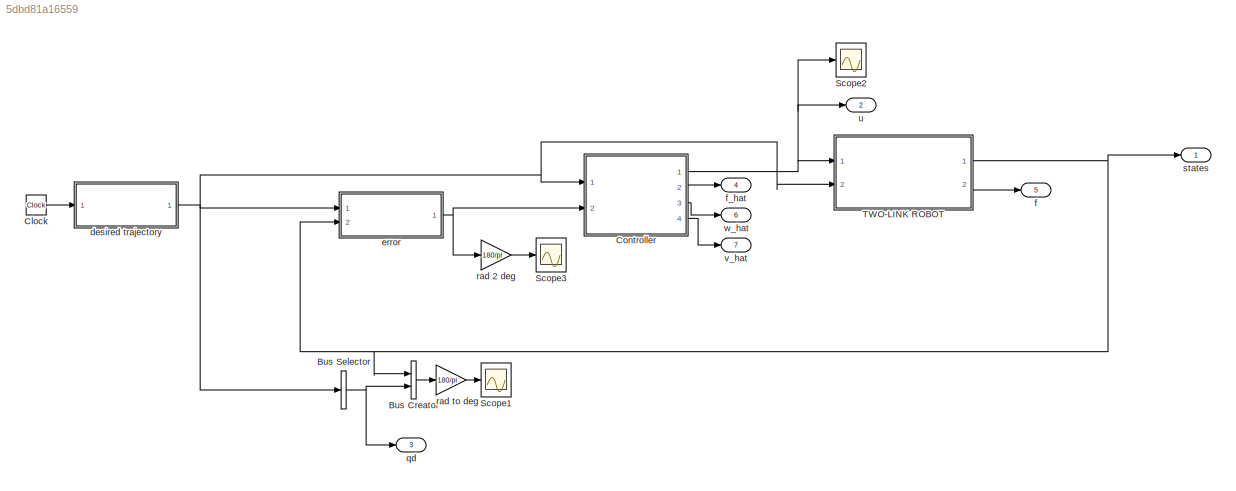
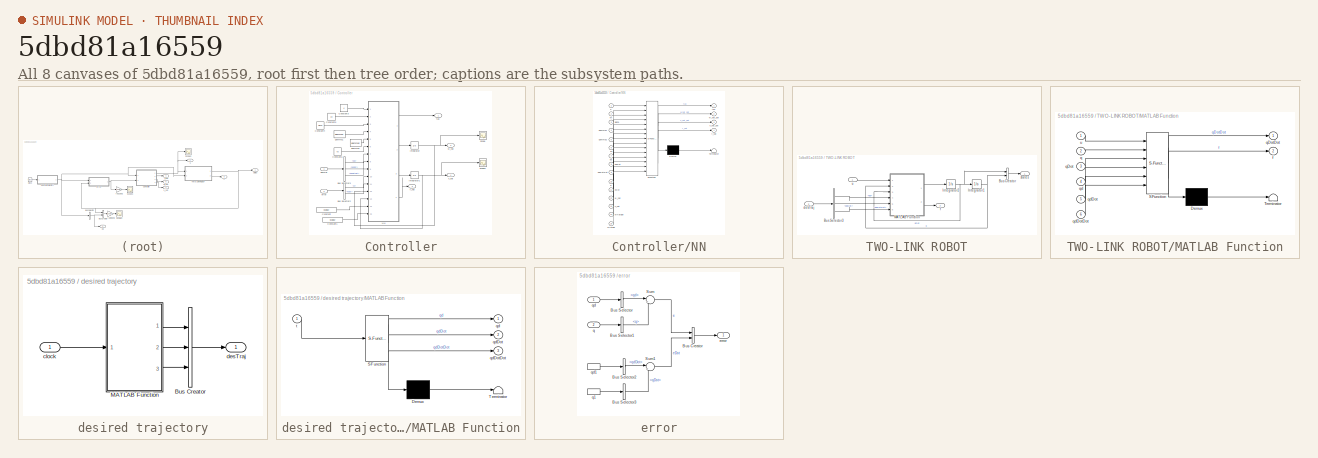
[diagram: thumbnail index - all 8 canvases of the model, root first then tree order]
MODEL slx_5dbd81a16559
KIND model
CONFIG AbsTol = auto
CONFIG EnableMultiTasking = on
CONFIG FixedStep = 0.0001
CONFIG MaxStep = auto
CONFIG MinStep = auto
CONFIG RelTol = 1e-6
CONFIG SampleTimeConstraint = Unconstrained
CONFIG Solver = ode45
CONFIG SolverName = ode45
CONFIG StartTime = 0.0
CONFIG StopTime = 20
BLOCK [BusCreator] Bus Creator
  DisplayOption = bar
  InheritFromInputs = on
  Inputs = 2
  Ports = [2, 1]
BLOCK [BusSelector] Bus Selector
  OutputAsBus = on
  OutputSignals = qd,qdDot
  Ports = [1, 1]
BLOCK [Clock] Clock
  Decimation = 1
BLOCK [SubSystem] Controller
  Ports = [2, 4]
  RequestExecContextInheritance = off
BLOCK [BusSelector] Controller/Bus Selector2
  OutputAsBus = off
  OutputSignals = e,eDot
  Ports = [1, 2]
BLOCK [BusSelector] Controller/Bus Selector3
  OutputAsBus = off
  OutputSignals = qd,qdDot,qdDotDot
  Ports = [1, 3]
BLOCK [Constant] Controller/Constant
  Value = wHatBar
BLOCK [Constant] Controller/Constant1
  Value = wHatBar
BLOCK [Constant] Controller/Constant3
  Value = k
BLOCK [Constant] Controller/Constant4
  Value = alpha
BLOCK [Constant] Controller/Constant5
  Value = kn
BLOCK [Constant] Controller/Constant6
  Value = ks
BLOCK [Integrator] Controller/Integrator
  InitialCondition = w_initial
  Ports = [1, 1]
BLOCK [Integrator] Controller/Integrator1
  InitialCondition = v_initial
  Ports = [1, 1]
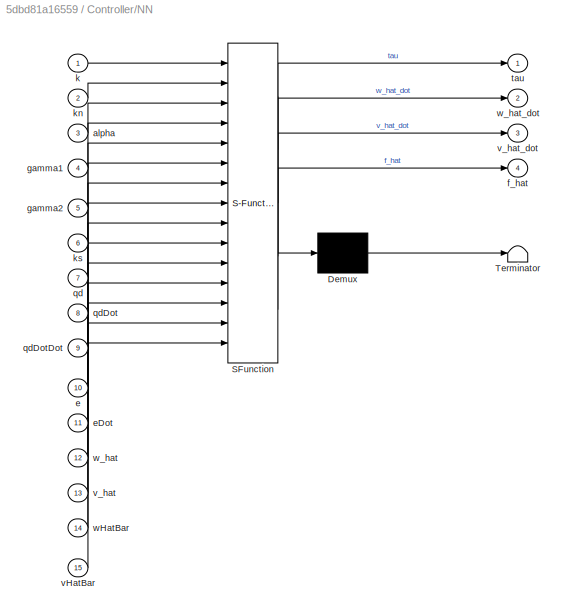
BLOCK [SubSystem] Controller/NN
  ErrorFcn = Stateflow.Translate.translate
  PermitHierarchicalResolution = ExplicitOnly
  Ports = [15, 4]
  RequestExecContextInheritance = off
  SFBlockType = MATLAB Function
  TreatAsAtomicUnit = on
BLOCK [Demux] Controller/NN/ Demux 
  Outputs = 1
  Ports = [1, 1]
BLOCK [S-Function] Controller/NN/ SFunction 
  EnableBusSupport = on
  FunctionName = sf_sfun
  PortCounts = [15 5]
  Ports = [15, 5]
  SFcnIsStateOwnerBlock = off
  SFunctionDeploymentMode = off
  Tag = Stateflow S-Function 3
BLOCK [Terminator] Controller/NN/ Terminator 
BLOCK [Inport] Controller/NN/alpha
  IconDisplay = Port number
  Port = 3
BLOCK [Inport] Controller/NN/e
  IconDisplay = Port number
  Port = 10
BLOCK [Inport] Controller/NN/eDot
  IconDisplay = Port number
  Port = 11
BLOCK [Outport] Controller/NN/f_hat
  IconDisplay = Port number
  Port = 4
BLOCK [Inport] Controller/NN/gamma1
  IconDisplay = Port number
  Port = 4
BLOCK [Inport] Controller/NN/gamma2
  IconDisplay = Port number
  Port = 5
BLOCK [Inport] Controller/NN/k
  IconDisplay = Port number
BLOCK [Inport] Controller/NN/kn
  IconDisplay = Port number
  Port = 2
BLOCK [Inport] Controller/NN/ks
  IconDisplay = Port number
  Port = 6
BLOCK [Inport] Controller/NN/qd
  IconDisplay = Port number
  Port = 7
BLOCK [Inport] Controller/NN/qdDot
  IconDisplay = Port number
  Port = 8
BLOCK [Inport] Controller/NN/qdDotDot
  IconDisplay = Port number
  Port = 9
BLOCK [Outport] Controller/NN/tau
  IconDisplay = Port number
BLOCK [Inport] Controller/NN/vHatBar
  IconDisplay = Port number
  Port = 15
BLOCK [Inport] Controller/NN/v_hat
  IconDisplay = Port number
  Port = 13
BLOCK [Outport] Controller/NN/v_hat_dot
  IconDisplay = Port number
  Port = 3
BLOCK [Inport] Controller/NN/wHatBar
  IconDisplay = Port number
  Port = 14
BLOCK [Inport] Controller/NN/w_hat
  IconDisplay = Port number
  Port = 12
BLOCK [Outport] Controller/NN/w_hat_dot
  IconDisplay = Port number
  Port = 2
BLOCK [Scope] Controller/Scope
  Floating = off
  NumInputPorts = 1
  Ports = [1]
  ScopeSpecificationString = Simulink.scopes.TimeScopeBlockCfg('CurrentConfiguration', extmgr.ConfigurationSet(extmgr.Configuration('Core','General UI',true),extmgr.Configuration('Core','Source UI',true),extmgr.Configuration('Sources','WiredSimulink',true,'DataLoggingSaveFormat','Array','DataLoggingDecimation','1','DataLoggingDecimateData',true),extmgr.Configuration('Visuals','Time Domain',true,'SerializedDisplays',{struct('M...<+1768ch>
BLOCK [Scope] Controller/Scope1
  Floating = off
  NumInputPorts = 1
  Ports = [1]
  ScopeSpecificationString = Simulink.scopes.TimeScopeBlockCfg('CurrentConfiguration', extmgr.ConfigurationSet(extmgr.Configuration('Core','General UI',true),extmgr.Configuration('Core','Source UI',true),extmgr.Configuration('Sources','WiredSimulink',true,'DataLoggingVariableName','ScopeData4','DataLoggingSaveFormat','Array','DataLoggingDecimation','1','DataLoggingDecimateData',true),extmgr.Configuration('Visuals','Time Domai...<+2226ch>
BLOCK [Inport] Controller/desTraj
  IconDisplay = Port number
BLOCK [Inport] Controller/error
  IconDisplay = Port number
  Port = 2
BLOCK [Outport] Controller/f_hat
  IconDisplay = Port number
  Port = 2
BLOCK [Constant] Controller/gamma1
  Value = gamma1
BLOCK [Constant] Controller/gamma2
  Value = gamma2
BLOCK [Outport] Controller/tau
  IconDisplay = Port number
BLOCK [Outport] Controller/v_hat
  IconDisplay = Port number
  Port = 4
BLOCK [Outport] Controller/w_hat
  IconDisplay = Port number
  Port = 3
BLOCK [Scope] Scope1
  Floating = off
  NumInputPorts = 1
  Ports = [1]
  ScopeSpecificationString = C++SS(StrPVP('Location','[1968, 56, 2895, 509]'),StrPVP('Open','off'),StrPVP('TickLabels','on'),MxPVP('AxesTitles',54,'struct(''axes1'',''%<SignalLabel>'')'),MxPVP('ScopeGraphics',57,'struct(''FigureColor'',''[0.501960784313725 0.501960784313725 0.501960784313725]'',''AxesColor'',''[0 0 0]'',''AxesTickColor'',''[1 1 1]'',''LineColors'',''[1 1 0;1 0 1;0 1 1;1 0 0;0 1 0;0 0 1]'',''LineStyles'',''-|-...<+356ch>
BLOCK [Scope] Scope2
  Floating = off
  NumInputPorts = 1
  Ports = [1]
  ScopeSpecificationString = C++SS(StrPVP('Location','[2929, 60, 3794, 530]'),StrPVP('Open','off'),StrPVP('TickLabels','on'),StrPVP('ZoomMode','yonly'),MxPVP('AxesTitles',54,'struct(''axes1'',''%<SignalLabel>'')'),MxPVP('ScopeGraphics',57,'struct(''FigureColor'',''[0.501960784313725 0.501960784313725 0.501960784313725]'',''AxesColor'',''[0 0 0]'',''AxesTickColor'',''[1 1 1]'',''LineColors'',''[1 1 0;1 0 1;0 1 1;1 0 0;0 1 0;0 ...<+381ch>
BLOCK [Scope] Scope3
  Floating = off
  NumInputPorts = 1
  Ports = [1]
  ScopeSpecificationString = Simulink.scopes.TimeScopeBlockCfg('CurrentConfiguration', extmgr.ConfigurationSet(extmgr.Configuration('Core','General UI',true),extmgr.Configuration('Core','Source UI',true),extmgr.Configuration('Sources','WiredSimulink',true,'DataLoggingVariableName','ScopeData3','DataLoggingSaveFormat','StructureWithTime','DataLoggingDecimation','1','DataLoggingDecimateData',true),extmgr.Configuration('Visuals'...<+1693ch>
BLOCK [SubSystem] TWO-LINK ROBOT
  Ports = [2, 2]
  RequestExecContextInheritance = off
BLOCK [BusCreator] TWO-LINK ROBOT/Bus Creator
  DisplayOption = bar
  InheritFromInputs = on
  Inputs = 2
  Ports = [2, 1]
BLOCK [BusSelector] TWO-LINK ROBOT/Bus Selector3
  OutputAsBus = off
  OutputSignals = qd,qdDot,qdDotDot
  Ports = [1, 3]
BLOCK [Integrator] TWO-LINK ROBOT/Integrator1
  InitialCondition = [0;2]
  Ports = [1, 1]
BLOCK [Integrator] TWO-LINK ROBOT/Integrator2
  InitialCondition = [0;0]
  Ports = [1, 1]
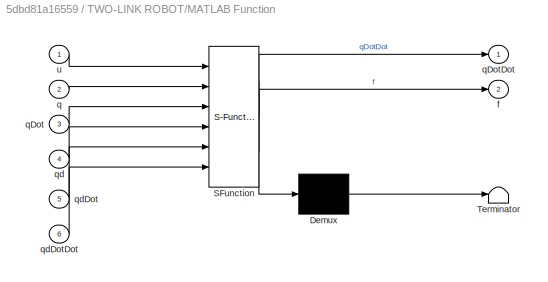
BLOCK [SubSystem] TWO-LINK ROBOT/MATLAB Function
  ErrorFcn = Stateflow.Translate.translate
  PermitHierarchicalResolution = ExplicitOnly
  Ports = [6, 2]
  RequestExecContextInheritance = off
  SFBlockType = MATLAB Function
  TreatAsAtomicUnit = on
BLOCK [Demux] TWO-LINK ROBOT/MATLAB Function/ Demux 
  Outputs = 1
  Ports = [1, 1]
BLOCK [S-Function] TWO-LINK ROBOT/MATLAB Function/ SFunction 
  EnableBusSupport = on
  FunctionName = sf_sfun
  PortCounts = [6 3]
  Ports = [6, 3]
  SFcnIsStateOwnerBlock = off
  SFunctionDeploymentMode = off
  Tag = Stateflow S-Function 4
BLOCK [Terminator] TWO-LINK ROBOT/MATLAB Function/ Terminator 
BLOCK [Outport] TWO-LINK ROBOT/MATLAB Function/f
  IconDisplay = Port number
  Port = 2
BLOCK [Inport] TWO-LINK ROBOT/MATLAB Function/q
  IconDisplay = Port number
  Port = 2
BLOCK [Inport] TWO-LINK ROBOT/MATLAB Function/qDot
  IconDisplay = Port number
  Port = 3
BLOCK [Outport] TWO-LINK ROBOT/MATLAB Function/qDotDot
  IconDisplay = Port number
BLOCK [Inport] TWO-LINK ROBOT/MATLAB Function/qd
  IconDisplay = Port number
  Port = 4
BLOCK [Inport] TWO-LINK ROBOT/MATLAB Function/qdDot
  IconDisplay = Port number
  Port = 5
BLOCK [Inport] TWO-LINK ROBOT/MATLAB Function/qdDotDot
  IconDisplay = Port number
  Port = 6
BLOCK [Inport] TWO-LINK ROBOT/MATLAB Function/u
  IconDisplay = Port number
BLOCK [Inport] TWO-LINK ROBOT/desTraj
  IconDisplay = Port number
  Port = 2
BLOCK [Outport] TWO-LINK ROBOT/f
  IconDisplay = Port number
  Port = 2
BLOCK [Outport] TWO-LINK ROBOT/states
  IconDisplay = Port number
BLOCK [Inport] TWO-LINK ROBOT/u
  IconDisplay = Port number
BLOCK [SubSystem] desired trajectory
  Ports = [1, 1]
  RequestExecContextInheritance = off
BLOCK [BusCreator] desired trajectory/Bus Creator
  DisplayOption = bar
  InheritFromInputs = on
  Inputs = 3
  Ports = [3, 1]
BLOCK [SubSystem] desired trajectory/MATLAB Function
  ErrorFcn = Stateflow.Translate.translate
  PermitHierarchicalResolution = ExplicitOnly
  Ports = [1, 3]
  RequestExecContextInheritance = off
  SFBlockType = MATLAB Function
  TreatAsAtomicUnit = on
BLOCK [Demux] desired trajectory/MATLAB Function/ Demux 
  Outputs = 1
  Ports = [1, 1]
BLOCK [S-Function] desired trajectory/MATLAB Function/ SFunction 
  EnableBusSupport = on
  FunctionName = sf_sfun
  PortCounts = [1 4]
  Ports = [1, 4]
  SFcnIsStateOwnerBlock = off
  SFunctionDeploymentMode = off
  Tag = Stateflow S-Function 1
BLOCK [Terminator] desired trajectory/MATLAB Function/ Terminator 
BLOCK [Outport] desired trajectory/MATLAB Function/qd
  IconDisplay = Port number
BLOCK [Outport] desired trajectory/MATLAB Function/qdDot
  IconDisplay = Port number
  Port = 2
BLOCK [Outport] desired trajectory/MATLAB Function/qdDotDot
  IconDisplay = Port number
  Port = 3
BLOCK [Inport] desired trajectory/MATLAB Function/t
  IconDisplay = Port number
BLOCK [Inport] desired trajectory/clock
  IconDisplay = Port number
BLOCK [Outport] desired trajectory/desTraj
  IconDisplay = Port number
BLOCK [SubSystem] error
  Ports = [2, 1]
  RequestExecContextInheritance = off
BLOCK [BusCreator] error/Bus Creator
  DisplayOption = bar
  InheritFromInputs = on
  Inputs = 2
  Ports = [2, 1]
BLOCK [BusSelector] error/Bus Selector
  OutputAsBus = off
  OutputSignals = qd
  Ports = [1, 1]
BLOCK [BusSelector] error/Bus Selector1
  OutputAsBus = off
  OutputSignals = q
  Ports = [1, 1]
BLOCK [BusSelector] error/Bus Selector2
  OutputAsBus = off
  OutputSignals = qdDot
  Ports = [1, 1]
BLOCK [BusSelector] error/Bus Selector3
  OutputAsBus = off
  OutputSignals = qDot
  Ports = [1, 1]
BLOCK [Sum] error/Sum
  IconShape = round
  InputSameDT = off
  Inputs = |+-
  OutDataTypeStr = Inherit: Inherit via internal rule
  Ports = [2, 1]
  SaturateOnIntegerOverflow = off
BLOCK [Sum] error/Sum1
  IconShape = round
  InputSameDT = off
  Inputs = |+-
  OutDataTypeStr = Inherit: Inherit via internal rule
  Ports = [2, 1]
  SaturateOnIntegerOverflow = off
BLOCK [Outport] error/error
  IconDisplay = Port number
BLOCK [Inport] error/q
  IconDisplay = Port number
  Port = 2
BLOCK [InportShadow] error/q1
  IconDisplay = Port number
  Port = 2
BLOCK [Inport] error/qd
  IconDisplay = Port number
BLOCK [InportShadow] error/qd1
  IconDisplay = Port number
BLOCK [Outport] f
  IconDisplay = Port number
  Port = 5
BLOCK [Outport] f_hat
  IconDisplay = Port number
  Port = 4
BLOCK [Outport] qd
  IconDisplay = Port number
  Port = 3
BLOCK [Gain] rad 2 deg
  Gain = 180/pi
  OutDataTypeStr = Inherit: Inherit via internal rule
  ParamDataTypeStr = Inherit: Inherit via internal rule
  SaturateOnIntegerOverflow = off
BLOCK [Gain] rad to deg
  Gain = 180/pi
  OutDataTypeStr = Inherit: Inherit via internal rule
  ParamDataTypeStr = Inherit: Inherit via internal rule
  SaturateOnIntegerOverflow = off
BLOCK [Outport] states
  IconDisplay = Port number
BLOCK [Outport] u
  IconDisplay = Port number
  Port = 2
BLOCK [Outport] v_hat
  IconDisplay = Port number
  Port = 7
BLOCK [Outport] w_hat
  IconDisplay = Port number
  Port = 6
LINE Bus Creator:1 -> rad to deg:1
NET Bus Selector:1 -> Bus Creator:2, qd:1
LINE Clock:1 -> desired trajectory:1
LINE Controller/Bus Selector2:1 -> Controller/NN:10
LINE Controller/Bus Selector2:2 -> Controller/NN:11
LINE Controller/Bus Selector3:1 -> Controller/NN:7
LINE Controller/Bus Selector3:2 -> Controller/NN:8
LINE Controller/Bus Selector3:3 -> Controller/NN:9
LINE Controller/Constant1:1 -> Controller/NN:15
LINE Controller/Constant3:1 -> Controller/NN:1
LINE Controller/Constant4:1 -> Controller/NN:3
LINE Controller/Constant5:1 -> Controller/NN:2
LINE Controller/Constant6:1 -> Controller/NN:6
LINE Controller/Constant:1 -> Controller/NN:14
NET Controller/Integrator1:1 -> Controller/NN:13, Controller/Scope1:1, Controller/v_hat:1
NET Controller/Integrator:1 -> Controller/NN:12, Controller/Scope:1, Controller/w_hat:1
LINE Controller/NN:1 -> Controller/tau:1
LINE Controller/NN:2 -> Controller/Integrator:1
LINE Controller/NN:3 -> Controller/Integrator1:1
LINE Controller/NN:4 -> Controller/f_hat:1
LINE Controller/desTraj:1 -> Controller/Bus Selector3:1
LINE Controller/error:1 -> Controller/Bus Selector2:1
LINE Controller/gamma1:1 -> Controller/NN:4
LINE Controller/gamma2:1 -> Controller/NN:5
NET Controller:1 -> Scope2:1, TWO-LINK ROBOT:1, u:1
LINE Controller:2 -> f_hat:1
LINE Controller:3 -> w_hat:1
LINE Controller:4 -> v_hat:1
LINE TWO-LINK ROBOT/Bus Creator:1 -> TWO-LINK ROBOT/states:1
LINE TWO-LINK ROBOT/Bus Selector3:1 -> TWO-LINK ROBOT/MATLAB Function:4
LINE TWO-LINK ROBOT/Bus Selector3:2 -> TWO-LINK ROBOT/MATLAB Function:5
LINE TWO-LINK ROBOT/Bus Selector3:3 -> TWO-LINK ROBOT/MATLAB Function:6
NET TWO-LINK ROBOT/Integrator1:1 -> TWO-LINK ROBOT/Bus Creator:2, TWO-LINK ROBOT/MATLAB Function:2
NET TWO-LINK ROBOT/Integrator2:1 -> TWO-LINK ROBOT/Bus Creator:1, TWO-LINK ROBOT/Integrator1:1, TWO-LINK ROBOT/MATLAB Function:3
LINE TWO-LINK ROBOT/MATLAB Function:1 -> TWO-LINK ROBOT/Integrator2:1
LINE TWO-LINK ROBOT/MATLAB Function:2 -> TWO-LINK ROBOT/f:1
LINE TWO-LINK ROBOT/desTraj:1 -> TWO-LINK ROBOT/Bus Selector3:1
LINE TWO-LINK ROBOT/u:1 -> TWO-LINK ROBOT/MATLAB Function:1
NET TWO-LINK ROBOT:1 -> Bus Creator:1, error:2, states:1
LINE TWO-LINK ROBOT:2 -> f:1
LINE desired trajectory/Bus Creator:1 -> desired trajectory/desTraj:1
LINE desired trajectory/MATLAB Function:1 -> desired trajectory/Bus Creator:1
LINE desired trajectory/MATLAB Function:2 -> desired trajectory/Bus Creator:2
LINE desired trajectory/MATLAB Function:3 -> desired trajectory/Bus Creator:3
LINE desired trajectory/clock:1 -> desired trajectory/MATLAB Function:1
NET desired trajectory:1 -> Bus Selector:1, Controller:1, TWO-LINK ROBOT:2, error:1
LINE error/Bus Creator:1 -> error/error:1
LINE error/Bus Selector1:1 -> error/Sum:2
LINE error/Bus Selector2:1 -> error/Sum1:1
LINE error/Bus Selector3:1 -> error/Sum1:2
LINE error/Bus Selector:1 -> error/Sum:1
LINE error/Sum1:1 -> error/Bus Creator:2
LINE error/Sum:1 -> error/Bus Creator:1
LINE error/q1:1 -> error/Bus Selector3:1
LINE error/q:1 -> error/Bus Selector1:1
LINE error/qd1:1 -> error/Bus Selector2:1
LINE error/qd:1 -> error/Bus Selector:1
NET error:1 -> Controller:2, rad 2 deg:1
LINE rad 2 deg:1 -> Scope3:1
LINE rad to deg:1 -> Scope1:1
note: NET lines group one-source signal fan-out (src -> all destinations, sorted); 1:1 wires keep LINE
CHART desired trajectory/MATLAB Function states=1 transitions=1
  STATE_LABEL 'eML_blk_kernel()'
  STATE_LABEL 'SCRIPT:\nfunction [qd,qdDot,qdDotDot]  = des_trajectory(t)\n%#codegen\n\n% This block supports an embeddable subset of the MATLAB language.\n% See the help menu for details. \n\nqd       = [cos(0.5*t);2*cos(t)];\nqdDot    = [-0.5*sin(0.5*t);-2*sin(t)]; %Enter the expression\nqdDotDot = [-0.25*cos(0.5*t);-2*cos(t)];\n\nend\n'
CHART Controller/NN states=1 transitions=1
  STATE_LABEL 'eML_blk_kernel()'
  STATE_LABEL "SCRIPT:\nfunction [tau,w_hat_dot,v_hat_dot,f_hat]= controller1(k,kn,alpha,gamma1,gamma2,ks,qd,qdDot,qdDotDot,e,eDot,w_hat,v_hat,wHatBar,vHatBar)\n%#codegen\n\nq = qd-e; % Check\nqDot = qdDot-eDot; % Check\nr = eDot+alpha*e; % Check\n\nqd_vec = [1 qd' qdDot' qdDotDot']'; % (7x1)\nvq = v_hat'*qd_vec; % (5x7)(7x1) = (5x1)\n\nsigma = exp(-(vq).^2./2); % (5x1)\n\nsigma_vec = [1 sigma']';   % (6x1)\nsigma_prime_vec =...<+1692ch>"
CHART TWO-LINK ROBOT/MATLAB Function states=1 transitions=1
  STATE_LABEL 'eML_blk_kernel()'
  STATE_LABEL 'SCRIPT:\nfunction [qDotDot,f] = dynamics(u,q,qDot,qd,qdDot,qdDotDot)\n%#codegen\n\np1 = 3.473;\np2 = 0.196;\np3 = 0.242;\n\nfd1 = 5.3;\nfd2 = 1.1;\n\nM = [p1+2*p3*cos(q(2)), p2+p3*cos(q(2)); p2+p3*cos(q(2)), p2];\nVm = [-p3*sin(q(2))*qDot(2), -p3*sin(q(2))*(qDot(1)+qDot(2)); p3*sin(q(2))*qDot(1), 0];\nFd = [fd1, 0; 0, fd2];\n\nqDotDot = M\\(u - Vm*qDot - Fd*qDot);\n\n\nM_d = [p1+2*p3*cos(qd(2)), p2+p3*cos(qd(2)); p2...<+189ch>'
